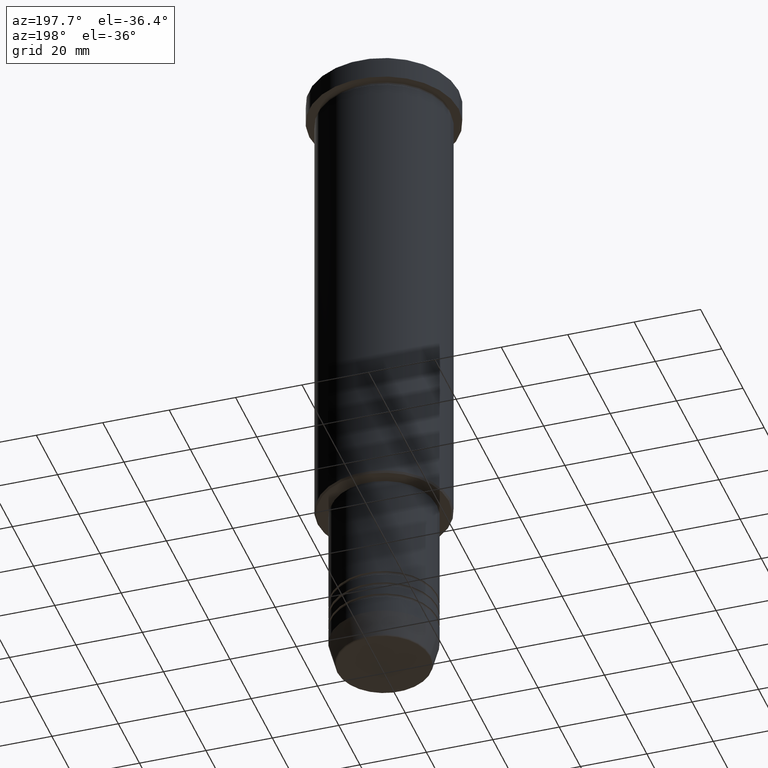
[diagram: clean part render]
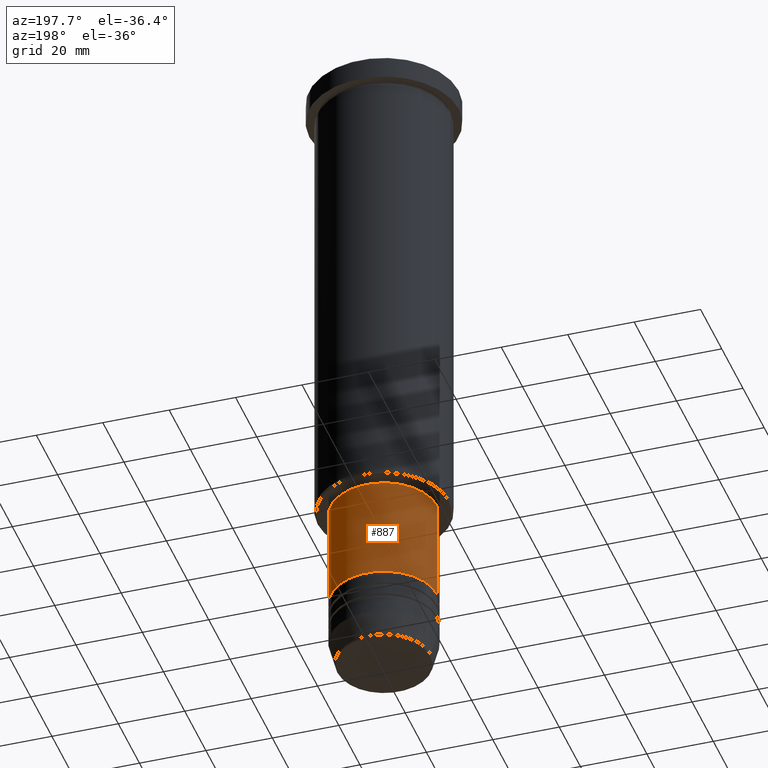
[diagram: same view with one face highlighted and labeled with its STEP entity id]
A machine part, auxiliary view. The second image highlights one B-rep face of the part: STEP entity #887.
In plain terms, the highlighted cylindrical surface (partial cylindrical patch) has radius 16 mm, axis along (-0, -0, 1).
Its self-contained STEP definition (entity closure, byte-faithful):
#44 = VERTEX_POINT ( 'NONE', #1183 ) ;
#90 = CARTESIAN_POINT ( 'NONE',  ( 16.00000000000000000, 0.000000000000000000, 0.000000000000000000 ) ) ;
#118 = AXIS2_PLACEMENT_3D ( 'NONE', #264, #633, #816 ) ;
#165 = DIRECTION ( 'NONE',  ( 1.000000000000000000, 0.000000000000000000, 0.000000000000000000 ) ) ;
#199 = EDGE_CURVE ( 'NONE', #1163, #440, #861, .T. ) ;
#205 = DIRECTION ( 'NONE',  ( -0.000000000000000000, -0.000000000000000000, 1.000000000000000000 ) ) ;
#264 = CARTESIAN_POINT ( 'NONE',  ( 0.000000000000000000, 0.000000000000000000, -147.0000000000000000 ) ) ;
#311 = VERTEX_POINT ( 'NONE', #1139 ) ;
#359 = LINE ( 'NONE', #90, #575 ) ;
#366 = VECTOR ( 'NONE', #205, 1000.000000000000000 ) ;
#403 = AXIS2_PLACEMENT_3D ( 'NONE', #1150, #706, #165 ) ;
#414 = EDGE_CURVE ( 'NONE', #311, #440, #1009, .T. ) ;
#440 = VERTEX_POINT ( 'NONE', #1167 ) ;
#469 = ORIENTED_EDGE ( 'NONE', *, *, #199, .T. ) ;
#473 = DIRECTION ( 'NONE',  ( 1.000000000000000000, 0.000000000000000000, 0.000000000000000000 ) ) ;
#486 = EDGE_CURVE ( 'NONE', #44, #311, #359, .T. ) ;
#506 = FACE_OUTER_BOUND ( 'NONE', #822, .T. ) ;
#575 = VECTOR ( 'NONE', #638, 1000.000000000000000 ) ;
#580 = CARTESIAN_POINT ( 'NONE',  ( 0.000000000000000000, 0.000000000000000000, -178.5000000000000284 ) ) ;
#618 = ORIENTED_EDGE ( 'NONE', *, *, #414, .F. ) ;
#633 = DIRECTION ( 'NONE',  ( -0.000000000000000000, -0.000000000000000000, 1.000000000000000000 ) ) ;
#638 = DIRECTION ( 'NONE',  ( -0.000000000000000000, -0.000000000000000000, 1.000000000000000000 ) ) ;
#706 = DIRECTION ( 'NONE',  ( -0.000000000000000000, -0.000000000000000000, 1.000000000000000000 ) ) ;
#785 = CYLINDRICAL_SURFACE ( 'NONE', #403, 16.00000000000000000 ) ;
#816 = DIRECTION ( 'NONE',  ( 1.000000000000000000, 0.000000000000000000, 0.000000000000000000 ) ) ;
#822 = EDGE_LOOP ( 'NONE', ( #1008, #469, #618, #1059 ) ) ;
#827 = CIRCLE ( 'NONE', #1014, 16.00000000000000000 ) ;
#861 = LINE ( 'NONE', #1033, #366 ) ;
#887 = ADVANCED_FACE ( 'NONE', ( #506 ), #785, .T. ) ;
#939 = DIRECTION ( 'NONE',  ( -0.000000000000000000, -0.000000000000000000, 1.000000000000000000 ) ) ;
#1008 = ORIENTED_EDGE ( 'NONE', *, *, #1141, .T. ) ;
#1009 = CIRCLE ( 'NONE', #118, 16.00000000000000000 ) ;
#1014 = AXIS2_PLACEMENT_3D ( 'NONE', #580, #939, #473 ) ;
#1033 = CARTESIAN_POINT ( 'NONE',  ( -16.00000000000000000, 1.959434878635765131E-15, 0.000000000000000000 ) ) ;
#1059 = ORIENTED_EDGE ( 'NONE', *, *, #486, .F. ) ;
#1121 = CARTESIAN_POINT ( 'NONE',  ( -16.00000000000000000, 1.959434878635765131E-15, -178.5000000000000284 ) ) ;
#1139 = CARTESIAN_POINT ( 'NONE',  ( 16.00000000000000000, 0.000000000000000000, -147.0000000000000000 ) ) ;
#1141 = EDGE_CURVE ( 'NONE', #44, #1163, #827, .T. ) ;
#1150 = CARTESIAN_POINT ( 'NONE',  ( 0.000000000000000000, 0.000000000000000000, 0.000000000000000000 ) ) ;
#1163 = VERTEX_POINT ( 'NONE', #1121 ) ;
#1167 = CARTESIAN_POINT ( 'NONE',  ( -16.00000000000000000, 1.959434878635765131E-15, -147.0000000000000000 ) ) ;
#1183 = CARTESIAN_POINT ( 'NONE',  ( 16.00000000000000000, 0.000000000000000000, -178.5000000000000284 ) ) ;